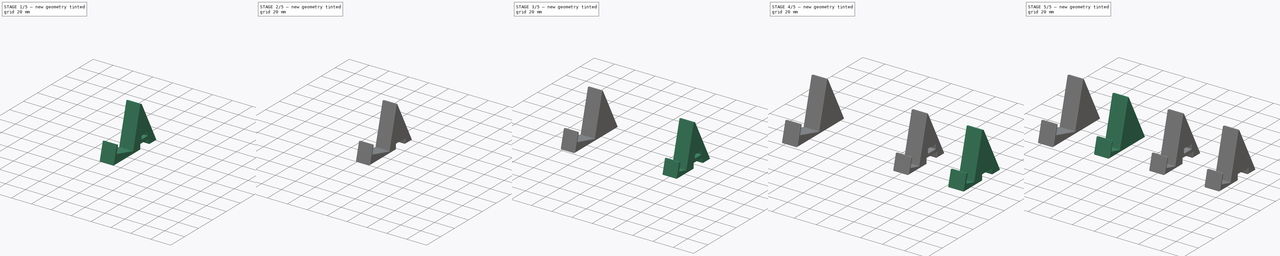
[diagram: build sequence overview — one tinted view per stage of 5, left to right]
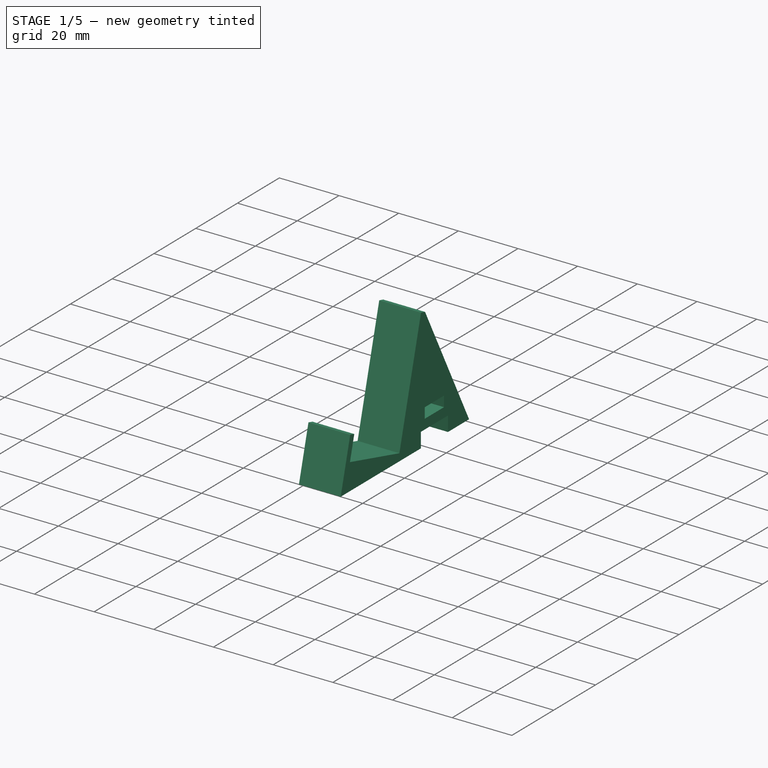
[diagram: stage 1 of 5 — iso view after this stage's code; geometry added in this stage tinted green]
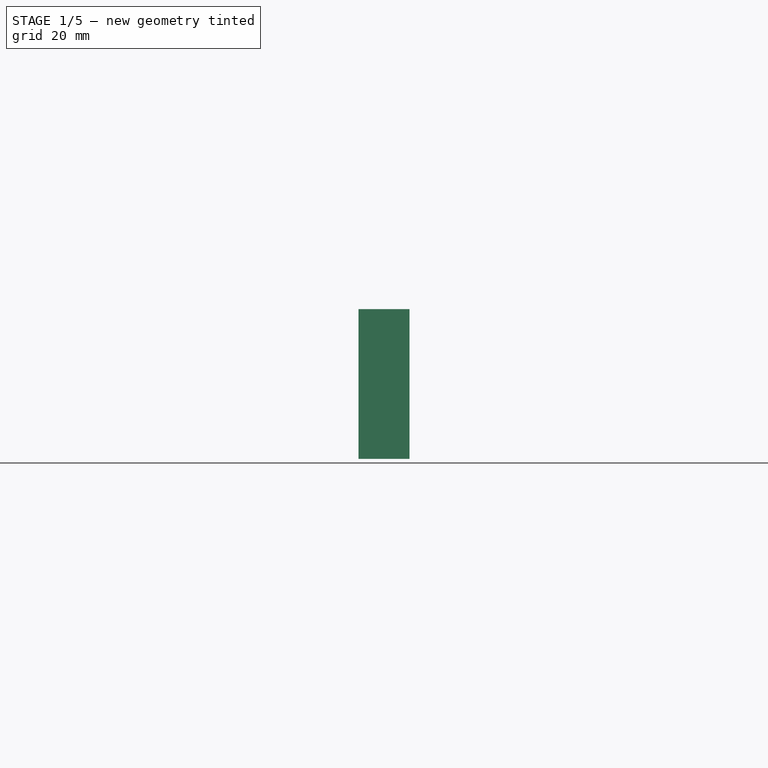
[diagram: stage 1 of 5 — front view after this stage's code; geometry added in this stage tinted green]
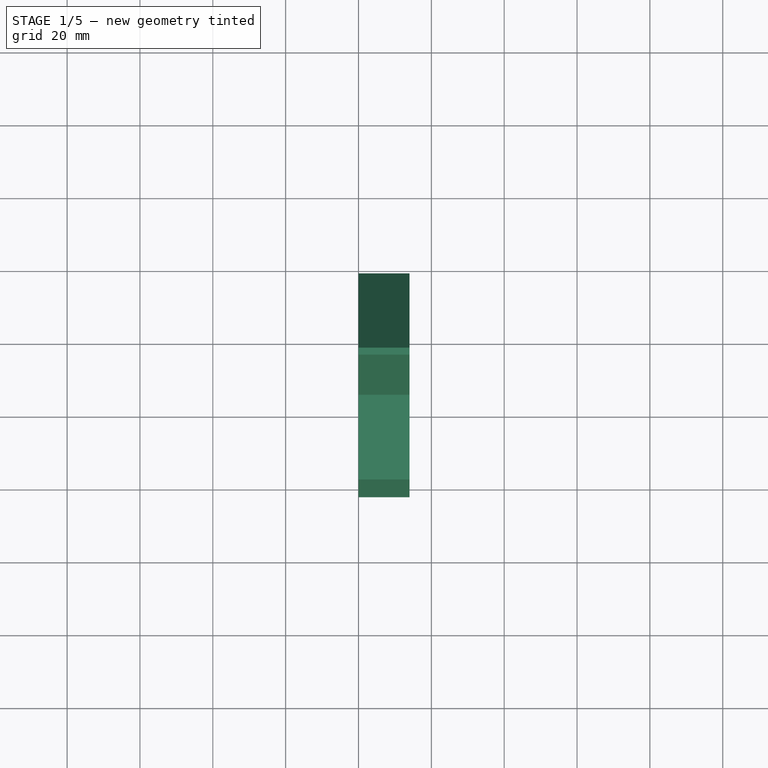
[diagram: stage 1 of 5 — top view after this stage's code; geometry added in this stage tinted green]
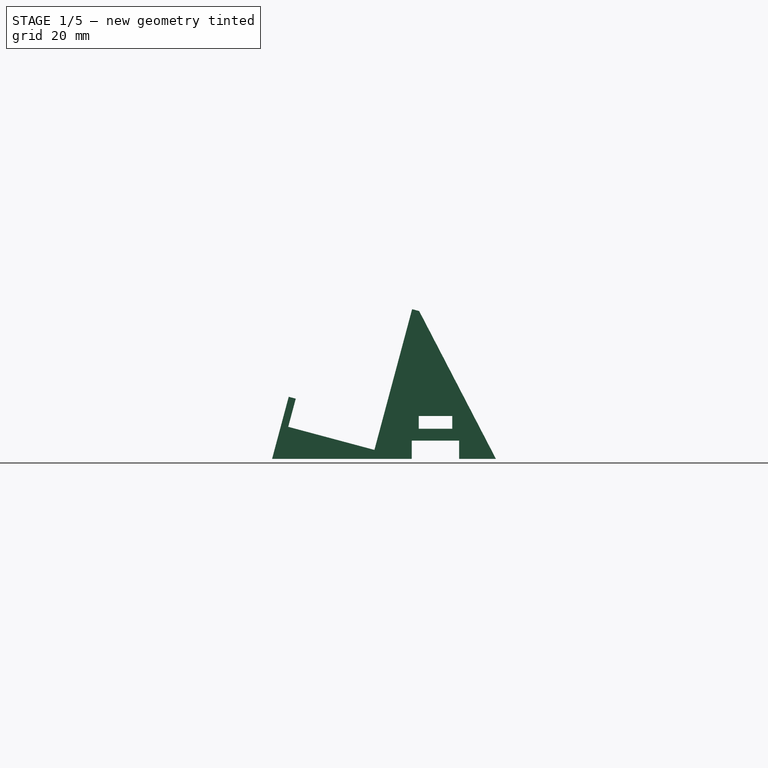
[diagram: stage 1 of 5 — right view after this stage's code; geometry added in this stage tinted green]
FCSTD DOCUMENT  (FreeCAD 0.20R29177 +426 (Git))
Label: CD Kit
License: All rights reserved
LicenseURL: http://en.wikipedia.org/wiki/All_rights_reserved
objects: Sketcher::SketchObject×18, PartDesign::Pocket×18, PartDesign::Pad×10, PartDesign::Body×8, Part::Part2DObjectPython×6, PartDesign::FeatureBase×6, PartDesign::Chamfer×6, App::Part×2, PartDesign::ShapeBinder×1
note: 107 computed .brp shape members not serialized (recipe doc carries the construction recipe); baked Part::Feature solids carry a one-line shape summary decoded from their .brp

FEATURE [PartDesign::Body] Body002  label="CD Kit Left"
  BaseFeature = -> Pad001
  Group = -> [Clone001,Sketch003,Sketch004,Pocket001,Sketch005,Pocket002,Pad003,Chamfer001,Sketch008,Pocket005,Pocket006,ShapeString001,Pocket010]
  Origin = -> Origin003
  Tip = -> Pocket010
FEATURE [App::Part] Part  label="CD Jewel Case"
  Group = -> [Body,Body001,Body002,Body003]
  Origin = -> Origin
FEATURE [Sketcher::SketchObject] Sketch010
  FullyConstrained = true
  MapMode = 5
  Placement = pos=(0,0,0) rot=(0.57735,0.57735,0.57735;2.0944rad)
  Support = -> [YZ_Plane006]
  sketch-geometry (9):
    g0: LineSegment StartX=0 StartY=0 StartZ=0 EndX=0 EndY=10 EndZ=0
    g1: LineSegment StartX=0 StartY=10 StartZ=0 EndX=2 EndY=10 EndZ=0
    g2: LineSegment StartX=2 StartY=10 StartZ=0 EndX=2 EndY=2 EndZ=0
    g3: LineSegment StartX=2 StartY=2 StartZ=0 EndX=26.5 EndY=2 EndZ=0
    g4: LineSegment StartX=26.5 StartY=2 StartZ=0 EndX=26.5 EndY=42 EndZ=0
    g5: LineSegment StartX=26.5 StartY=42 StartZ=0 EndX=28.5 EndY=42 EndZ=0
    g6: LineSegment StartX=28.5 StartY=42 StartZ=0 EndX=28.5 EndY=0 EndZ=0
    g7: LineSegment StartX=28.5 StartY=0 StartZ=0 EndX=0 EndY=0 EndZ=0
    g8: LineSegment StartX=26.5 StartY=2 StartZ=0 EndX=26.5 EndY=0 EndZ=0
  constraints (26):
    c: Coincident(g0,g-1)
    c: PointOnObject(g0,g-2)
    c: Coincident(g1,g0)
    c: Coincident(g2,g1)
    c: Vertical(g2)
    c: Coincident(g3,g2)
    c: Horizontal(g3)
    c: Coincident(g4,g3)
    c: Vertical(g4)
    c: Coincident(g5,g4)
    c: Horizontal(g5)
    c: Coincident(g6,g5)
    c: PointOnObject(g6,g-1)
    c: Vertical(g6)
    c: Coincident(g7,g6)
    c: Coincident(g7,g0)
    c: Horizontal(g1)
    c: Coincident(g8,g3)
    c: PointOnObject(g8,g7)
    c: Vertical(g8)
    c: Distance(g1) = 2
    c: Distance(g2) = 8
    c: Distance(g4) = 40
    c: Equal(g8,g1)
    c: Equal(g8,g5)
    c: Distance(g3) = 24.5
FEATURE [PartDesign::Pad] Pad005
  Direction = (1,-2e-16,3e-16)
  Length = 14
  Length2 = 10
  Placement = pos=(0,0,0) rot=(0.57735,0.57735,0.57735;2.0944rad)
  Profile = -> Sketch010
  ReferenceAxis = -> Sketch010 [N_Axis]
  Type = 0
FEATURE [Part::Part2DObjectPython] ShapeString003  # Draft 2D object (typed FeaturePython)
  FontFile = F:/16 Bit Git Repro/16 Bit Store/Font/OpenSans-Regular.ttf
  MakeFace = true
  Placement = pos=(12.5,4,4.44) rot=(0,0.707107,0.707107;3.14159rad)
  Size = 4
  String = CDXL
  Tracking = 0
FEATURE [PartDesign::Pocket] Pocket011
  BaseFeature = -> Pad005
  Direction = (0,-1,2e-16)
  Length = 0
  Length2 = 5
  Offset = 0.2
  Placement = pos=(0,0,0) rot=(0.57735,0.57735,0.57735;2.0944rad)
  Profile = -> ShapeString003
  ReferenceAxis = -> ShapeString003 [N_Axis]
  Type = 3
  UpToFace = -> Pad005 [Face3]
FEATURE [PartDesign::Body] Body004  label="XL Profile"
  Group = -> [Sketch010,Pad005,ShapeString003,Pocket011]
  Origin = -> Origin006
  Tip = -> Pocket011
FEATURE [PartDesign::FeatureBase] Clone003
  BaseFeature = -> Body004
  Placement = pos=(0,0,0) rot=(-1,0,0;0.261799rad)
FEATURE [Sketcher::SketchObject] Sketch011
  ExternalGeometry = -> [Clone003]
  FullyConstrained = true
  MapMode = 5
  Placement = pos=(14,-1.5e-14,4e-15) rot=(0.519988,0.677661,0.519988;1.95044rad)
  Support = -> [Clone003]
  sketch-geometry (20):
    g0: LineSegment StartX=28.5 StartY=-2.13e-14 StartZ=0 EndX=28.5 EndY=42 EndZ=0
    g1: LineSegment StartX=28.5 StartY=-2.13e-14 StartZ=0 EndX=7.1e-15 EndY=-1.35e-14 EndZ=0
    g2: LineSegment StartX=6.3e-15 StartY=-1.35e-14 StartZ=0 EndX=0 EndY=-7.63655 EndZ=0
    g3: LineSegment StartX=0 StartY=-7.63655 StartZ=0 EndX=28.5 EndY=-2.13e-14 EndZ=0
    g4: LineSegment StartX=28.5 StartY=-2.13e-14 StartZ=0 EndX=37.0385 EndY=2.28789 EndZ=0
    g5: LineSegment StartX=37.0385 StartY=2.28789 StartZ=0 EndX=35.7444 EndY=7.11752 EndZ=0
    g6: LineSegment StartX=35.7444 StartY=7.11752 StartZ=0 EndX=48.3015 EndY=10.4822 EndZ=0
    g7: LineSegment StartX=48.3015 StartY=10.4822 StartZ=0 EndX=49.5956 EndY=5.65254 EndZ=0
    g8: LineSegment StartX=49.5956 StartY=5.65254 StartZ=0 EndX=59.3478 EndY=8.26565 EndZ=0
    g9: LineSegment StartX=59.3478 StartY=8.26565 StartZ=0 EndX=28.5 EndY=42 EndZ=0
    g10: LineSegment StartX=36.7385 StartY=10.7485 StartZ=0 EndX=45.6251 EndY=13.1297 EndZ=0
    g11: LineSegment StartX=45.6251 StartY=13.1297 StartZ=0 EndX=44.7192 EndY=16.5104 EndZ=0
    g12: LineSegment StartX=44.7192 StartY=16.5104 StartZ=0 EndX=35.8327 EndY=14.1293 EndZ=0
    g13: LineSegment StartX=35.8327 StartY=14.1293 StartZ=0 EndX=36.7385 EndY=10.7485 EndZ=0
    g14: LineSegment StartX=41.1818 StartY=11.9391 StartZ=0 EndX=42.023 EndY=8.79985 EndZ=0
    g15: LineSegment StartX=37.0385 StartY=2.28789 StartZ=0 EndX=49.5956 EndY=5.65254 EndZ=0
    g16: LineSegment StartX=35.7444 StartY=7.11752 StartZ=0 EndX=28.5 EndY=5.17638 EndZ=0
    g17: LineSegment StartX=48.3015 StartY=10.4822 StartZ=0 EndX=55.5459 EndY=12.4233 EndZ=0
    g18: LineSegment StartX=44.7192 StartY=16.5104 StartZ=0 EndX=50.4133 EndY=18.0362 EndZ=0
    g19: LineSegment StartX=35.8327 StartY=14.1293 StartZ=0 EndX=28.5 EndY=12.1645 EndZ=0
  constraints (54):
    c: Coincident(g0,g-4)
    c: Coincident(g0,g-4)
    c: Coincident(g1,g0)
    c: Coincident(g1,g-3)
    c: Coincident(g2,g1)
    c: PointOnObject(g2,g-2)
    c: Coincident(g3,g2)
    c: Coincident(g3,g0)
    c: Coincident(g4,g0)
    c: Coincident(g5,g4)
    c: Coincident(g6,g5)
    c: Coincident(g7,g6)
    c: Coincident(g8,g7)
    c: Coincident(g9,g8)
    c: Coincident(g9,g0)
    c: Coincident(g11,g10)
    c: Coincident(g12,g11)
    c: Coincident(g13,g12)
    c: Coincident(g13,g10)
    c: Coincident(g15,g4)
    c: Coincident(g15,g7)
    c: Parallel(g3,g4)
    c: Parallel(g4,g15)
    c: Parallel(g15,g8)
    c: Parallel(g15,g6)
    c: Parallel(g6,g10)
    c: Parallel(g10,g12)
    c: Symmetric(g10,g10,g14)
    c: Symmetric(g5,g6,g14)
    c: Angle(g3,g2) = 1.309
    c: Perpendicular(g5,g4)
    c: Perpendicular(g8,g7)
    c: Perpendicular(g14,g6)
    c: Perpendicular(g13,g10)
    c: Perpendicular(g11,g10)
    c: Distance(g7) = 5
    c: Distance(g6) = 13
    c: Distance(g14) = 3.25
    c: Distance(g11) = 3.5
    c: Distance(g12) = 9.2
    c: Coincident(g16,g5)
    c: PointOnObject(g16,g0)
    c: Coincident(g17,g6)
    c: PointOnObject(g17,g9)
    c: Coincident(g18,g11)
    c: PointOnObject(g18,g9)
    c: Coincident(g19,g12)
    c: PointOnObject(g19,g0)
    c: Parallel(g19,g12)
    c: Parallel(g12,g18)
    c: Parallel(g17,g6)
    c: Parallel(g6,g16)
    c: Equal(g16,g17)
    c: Distance(g17) = 7.5
FEATURE [PartDesign::Pad] Pad006
  BaseFeature = -> Clone003
  Direction = (1,-1.1e-15,2e-16)
  Length = 14
  Length2 = 10
  Placement = pos=(0,0,0) rot=(-1,0,0;0.261799rad)
  Profile = -> Sketch011
  ReferenceAxis = -> Sketch011 [N_Axis]
  Refine = true
  Reversed = true
  Type = 0
FEATURE [Sketcher::SketchObject] Sketch012
  ExternalGeometry = -> [Pad006]
  FullyConstrained = true
  MapMode = 5
  Placement = pos=(1.2e-15,4.93681e-11,-7.37634) rot=(1,0,0;3.14159rad)
  Support = -> [Pad006]
  sketch-geometry (6):
    g0: LineSegment StartX=7 StartY=-59.4649 StartZ=0 EndX=7 EndY=-57.5528 EndZ=0
    g1: LineSegment StartX=7 StartY=-57.5528 StartZ=0 EndX=7 EndY=-54.4168 EndZ=0
    g2: LineSegment StartX=7 StartY=-54.4168 StartZ=0 EndX=7 EndY=-51.2808 EndZ=0
    g3: LineSegment StartX=7 StartY=-51.2808 StartZ=0 EndX=7 EndY=-49.3686 EndZ=0
    g4: Circle CenterX=7 CenterY=-54.4168 CenterZ=0 NormalX=0 NormalY=0 NormalZ=1 AngleXU=0 Radius=3.136
    g5: Circle CenterX=7 CenterY=-54.4168 CenterZ=0 NormalX=0 NormalY=0 NormalZ=1 AngleXU=0 Radius=0.893
  constraints (15):
    c: Vertical(g0)
    c: Coincident(g1,g0)
    c: Vertical(g1)
    c: Coincident(g2,g1)
    c: Vertical(g2)
    c: Coincident(g3,g2)
    c: Symmetric(g-3,g-3,g3)
    c: Symmetric(g-4,g-4,g0)
    c: Equal(g0,g3)
    c: Coincident(g4,g1)
    c: PointOnObject(g2,g4)
    c: Coincident(g5,g4)
    c: PointOnObject(g0,g4)
    c: Diameter(g4) = 6.272
    c: Diameter(g5) = 1.786
FEATURE [PartDesign::Pocket] Pocket012
  BaseFeature = -> Pad006
  Direction = (-2e-16,-6.6928e-12,1)
  Length = 0.5
  Length2 = 5
  Placement = pos=(0,0,0) rot=(-1,0,0;0.261799rad)
  Profile = -> Sketch012
  ReferenceAxis = -> Sketch012 [N_Axis]
  Type = 0
FEATURE [PartDesign::Pocket] Pocket013
  BaseFeature = -> Pocket012
  Direction = (-2e-16,-6.6929e-12,1)
  Length = 1
  Length2 = 5
  Placement = pos=(0,0,0) rot=(-1,0,0;0.261799rad)
  Profile = -> Pocket012 [Face86]
  Type = 0
FEATURE [PartDesign::FeatureBase] Clone004
  BaseFeature = -> Pocket013
  Placement = pos=(0,0,0) rot=(-1,0,0;0.261799rad)
FEATURE [Sketcher::SketchObject] Sketch013
  ExternalGeometry = -> [Clone004]
  FullyConstrained = true
  MapMode = 5
  Placement = pos=(4e-16,7.0098e-12,-2.37634) rot=(1,0,0;3.14159rad)
  Support = -> [Clone004]
  sketch-geometry (1):
    g0: Circle CenterX=7 CenterY=-42.8686 CenterZ=0 NormalX=0 NormalY=0 NormalZ=1 AngleXU=0 Radius=2.4
  constraints (2):
    c: Diameter(g0) = 4.8
    c: Symmetric(g-3,g-4,g0)
FEATURE [PartDesign::Pocket] Pocket014
  BaseFeature = -> Clone004
  Direction = (-2e-16,-2.9498e-12,1)
  Length = 11
  Length2 = 5
  Placement = pos=(0,0,0) rot=(-1,0,0;0.261799rad)
  Profile = -> Sketch013
  ReferenceAxis = -> Sketch013 [N_Axis]
  Type = 0
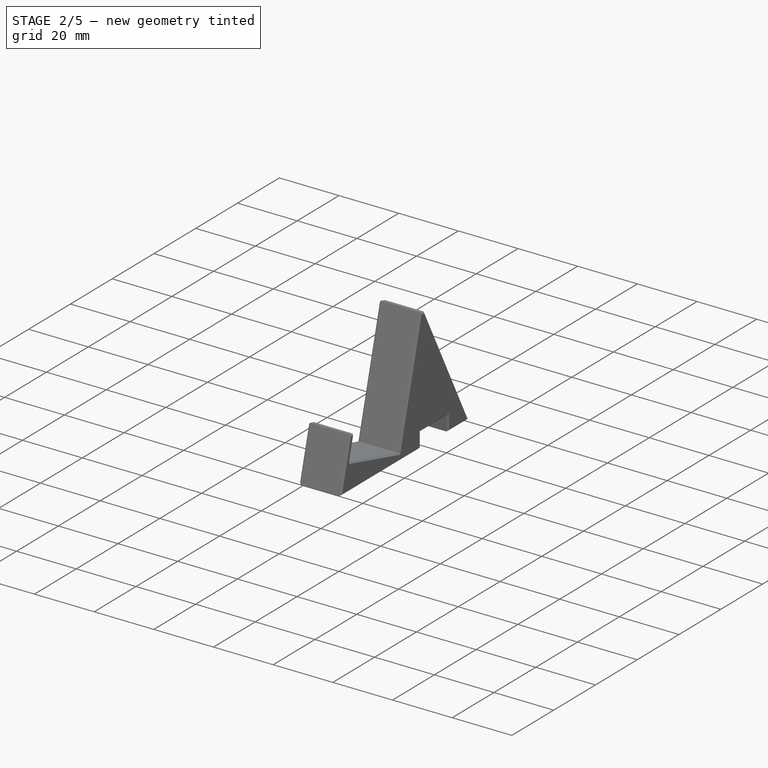
[diagram: stage 2 of 5 — iso view after this stage's code; geometry added in this stage tinted green]
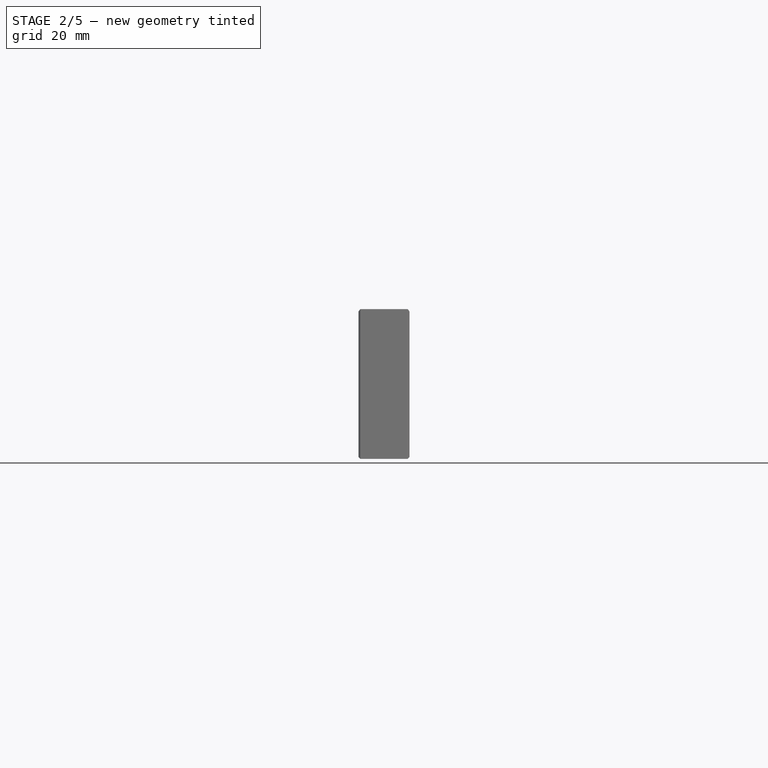
[diagram: stage 2 of 5 — front view after this stage's code; geometry added in this stage tinted green]
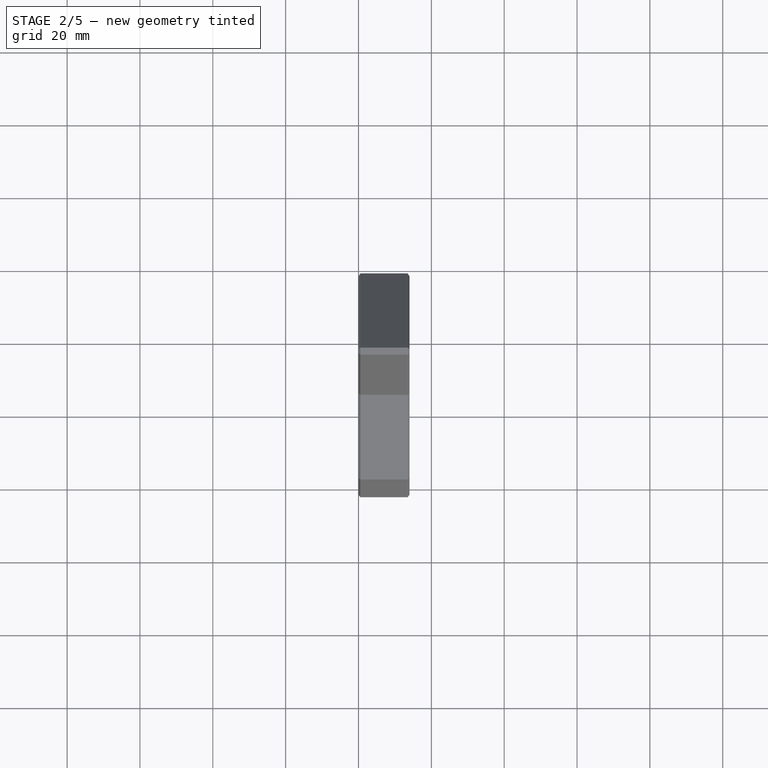
[diagram: stage 2 of 5 — top view after this stage's code; geometry added in this stage tinted green]
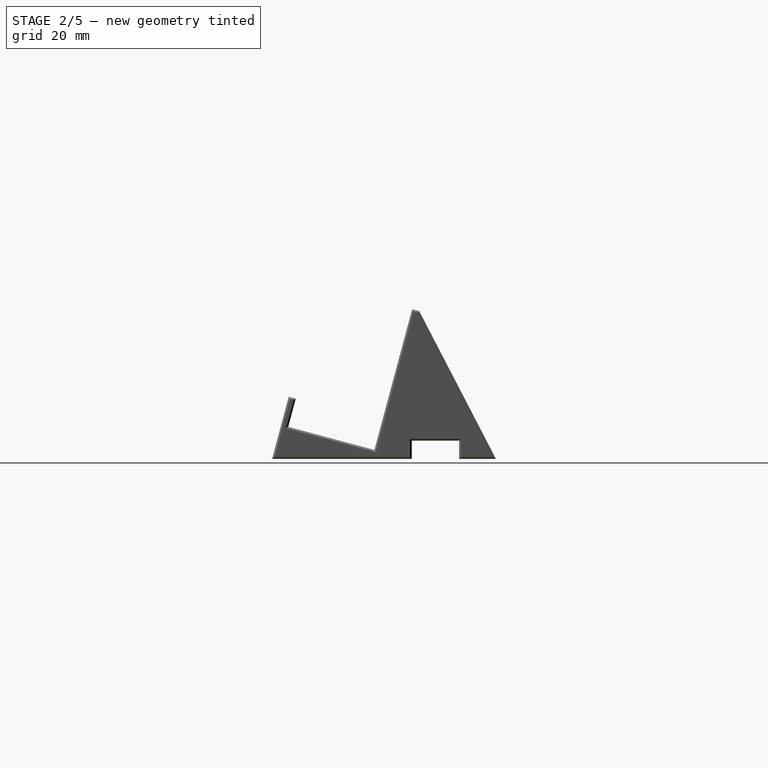
[diagram: stage 2 of 5 — right view after this stage's code; geometry added in this stage tinted green]
FEATURE [Sketcher::SketchObject] Sketch014
  ExternalGeometry = -> [Pocket014]
  FullyConstrained = true
  MapMode = 5
  Placement = pos=(4e-16,7.0102e-12,-2.37634) rot=(1,0,0;3.14159rad)
  Support = -> [Pocket014]
  sketch-geometry (1):
    g0: Circle CenterX=7 CenterY=-42.8686 CenterZ=0 NormalX=0 NormalY=0 NormalZ=1 AngleXU=0 Radius=2.6
  constraints (2):
    c: Coincident(g0,g-3)
    c: Diameter(g0) = 5.2
FEATURE [PartDesign::Pocket] Pocket015
  BaseFeature = -> Pocket014
  Direction = (-2e-16,-2.95e-12,1)
  Length = 5
  Length2 = 5
  Placement = pos=(0,0,0) rot=(-1,0,0;0.261799rad)
  Profile = -> Sketch014
  ReferenceAxis = -> Sketch014 [N_Axis]
  Type = 0
FEATURE [PartDesign::FeatureBase] Clone005
  BaseFeature = -> Pocket015
  Placement = pos=(0,0,0) rot=(-1,0,0;0.261799rad)
FEATURE [Sketcher::SketchObject] Sketch016
  ExternalGeometry = -> [Pocket015]
  FullyConstrained = true
  MapMode = 5
  Placement = pos=(-1.8e-14,0,0) rot=(0.519988,-0.677661,-0.519988;1.95044rad)
  Support = -> [Pocket015]
  sketch-geometry (4):
    g0: LineSegment StartX=-44.7192 StartY=16.5104 StartZ=0 EndX=-35.8327 EndY=14.1293 EndZ=0
    g1: LineSegment StartX=-35.8327 StartY=14.1293 StartZ=0 EndX=-36.7385 EndY=10.7485 EndZ=0
    g2: LineSegment StartX=-36.7385 StartY=10.7485 StartZ=0 EndX=-45.6251 EndY=13.1297 EndZ=0
    g3: LineSegment StartX=-45.6251 StartY=13.1297 StartZ=0 EndX=-44.7192 EndY=16.5104 EndZ=0
  constraints (8):
    c: Coincident(g0,g-3)
    c: Coincident(g0,g-4)
    c: Coincident(g1,g0)
    c: Coincident(g1,g-4)
    c: Coincident(g2,g1)
    c: Coincident(g2,g-3)
    c: Coincident(g3,g2)
    c: Coincident(g3,g0)
FEATURE [PartDesign::Pad] Pad008
  BaseFeature = -> Pocket015
  Direction = (-1,6e-16,-9e-16)
  Length = 2
  Length2 = 10
  Placement = pos=(0,0,0) rot=(-1,0,0;0.261799rad)
  Profile = -> Sketch016
  ReferenceAxis = -> Sketch016 [N_Axis]
  Refine = true
  Reversed = true
  Type = 0
FEATURE [Sketcher::SketchObject] Sketch017
  ExternalGeometry = -> [Clone005]
  FullyConstrained = true
  MapMode = 5
  Placement = pos=(14,-5.9e-15,1.06e-14) rot=(0.519988,0.677661,0.519988;1.95044rad)
  Support = -> [Clone005]
  sketch-geometry (4):
    g0: LineSegment StartX=35.8327 StartY=14.1293 StartZ=0 EndX=44.7192 EndY=16.5104 EndZ=0
    g1: LineSegment StartX=44.7192 StartY=16.5104 StartZ=0 EndX=45.6251 EndY=13.1297 EndZ=0
    g2: LineSegment StartX=45.6251 StartY=13.1297 StartZ=0 EndX=36.7385 EndY=10.7485 EndZ=0
    g3: LineSegment StartX=36.7385 StartY=10.7485 StartZ=0 EndX=35.8327 EndY=14.1293 EndZ=0
  constraints (8):
    c: Coincident(g0,g-3)
    c: Coincident(g0,g-4)
    c: Coincident(g1,g0)
    c: Coincident(g1,g-4)
    c: Coincident(g2,g1)
    c: Coincident(g2,g-3)
    c: Coincident(g3,g2)
    c: Coincident(g3,g0)
FEATURE [PartDesign::Pad] Pad009
  BaseFeature = -> Clone005
  Direction = (1,-3e-16,7e-16)
  Length = 2
  Length2 = 10
  Placement = pos=(0,0,0) rot=(-1,0,0;0.261799rad)
  Profile = -> Sketch017
  ReferenceAxis = -> Sketch017 [N_Axis]
  Refine = true
  Reversed = true
  Type = 0
FEATURE [PartDesign::Body] Body005  label="XL Stand"
  BaseFeature = -> Body004
  Group = -> [Clone003,Sketch011,Pad006,Sketch012,Pocket012,Pocket013,Sketch015,Pad007,Chamfer003]
  Origin = -> Origin007
  Placement = pos=(50,0,0) rot=(0,0,1;0rad)
  Tip = -> Chamfer003
FEATURE [Part::Part2DObjectPython] ShapeString004  # Draft 2D object (typed FeaturePython)
  FontFile = F:/16 Bit Git Repro/16 Bit Store/Font/OpenSans-Regular.ttf
  MakeFace = true
  Placement = pos=(3.72,7.84,-9.31) rot=(1,0,0;3.14159rad)
  Size = 10
  String = L
  Tracking = 0
FEATURE [Part::Part2DObjectPython] ShapeString005  # Draft 2D object (typed FeaturePython)
  FontFile = F:/16 Bit Git Repro/16 Bit Store/Font/OpenSans-Regular.ttf
  MakeFace = true
  Placement = pos=(3.43,7.84,-9.31) rot=(1,0,0;3.14159rad)
  Size = 10
  String = R
  Tracking = 0
FEATURE [PartDesign::Pocket] Pocket016
  BaseFeature = -> Pad008
  Direction = (0,0,1)
  Length = 0
  Length2 = 5
  Offset = 0.5
  Placement = pos=(0,0,0) rot=(-1,0,0;0.261799rad)
  Profile = -> ShapeString004
  ReferenceAxis = -> ShapeString004 [N_Axis]
  Type = 3
  UpToFace = -> Pad008 [Face5]
FEATURE [PartDesign::Pocket] Pocket017
  BaseFeature = -> Pad009
  Direction = (0,0,1)
  Length = 0
  Length2 = 5
  Offset = 0.5
  Placement = pos=(0,0,0) rot=(-1,0,0;0.261799rad)
  Profile = -> ShapeString005
  ReferenceAxis = -> ShapeString005 [N_Axis]
  Type = 3
  UpToFace = -> Pad009 [Face5]
FEATURE [PartDesign::Chamfer] Chamfer004
  Angle = 45
  Base = -> Pocket017 [Face5,Face4]
  BaseFeature = -> Pocket017
  ChamferType = 0
  FlipDirection = false
  Placement = pos=(0,0,0) rot=(-1,0,0;0.261799rad)
  Size = 0.5
  Size2 = 1
  SupportTransform = false
  UseAllEdges = false
FEATURE [PartDesign::Body] Body007  label="XL Kit Right"
  BaseFeature = -> Pocket015
  Group = -> [Clone005,Sketch017,Pad009,ShapeString005,Pocket017,Chamfer004]
  Origin = -> Origin009
  Placement = pos=(150,0,0) rot=(0,0,1;0rad)
  Tip = -> Chamfer004
FEATURE [PartDesign::Chamfer] Chamfer005
  Angle = 45
  Base = -> Pocket016 [Face4,Face5]
  BaseFeature = -> Pocket016
  ChamferType = 0
  FlipDirection = false
  Placement = pos=(0,0,0) rot=(-1,0,0;0.261799rad)
  Size = 0.5
  Size2 = 1
  SupportTransform = false
  UseAllEdges = false
FEATURE [PartDesign::Body] Body006  label="XL Kit Left"
  BaseFeature = -> Pocket013
  Group = -> [Clone004,Sketch013,Pocket014,Sketch014,Pocket015,Sketch016,Pad008,ShapeString004,Pocket016,Chamfer005]
  Origin = -> Origin008
  Placement = pos=(100,0,0) rot=(0,0,1;0rad)
  Tip = -> Chamfer005
FEATURE [App::Part] Part001  label="CD XL Jewel Case"
  Group = -> [Body004,Body005,Body006,Body007]
  Origin = -> Origin005
  Placement = pos=(0,100,0) rot=(0,0,1;0rad)
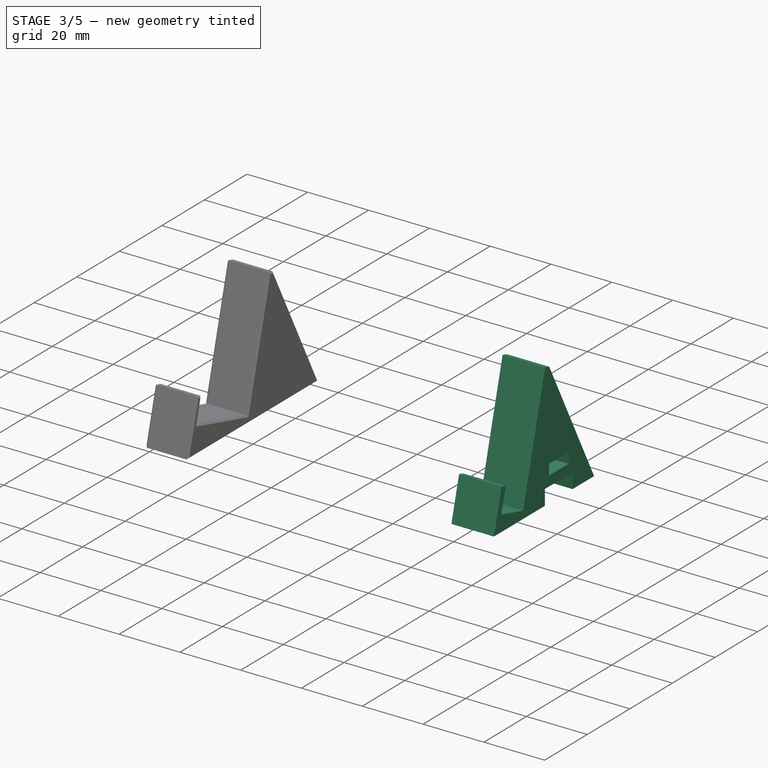
[diagram: stage 3 of 5 — iso view after this stage's code; geometry added in this stage tinted green]
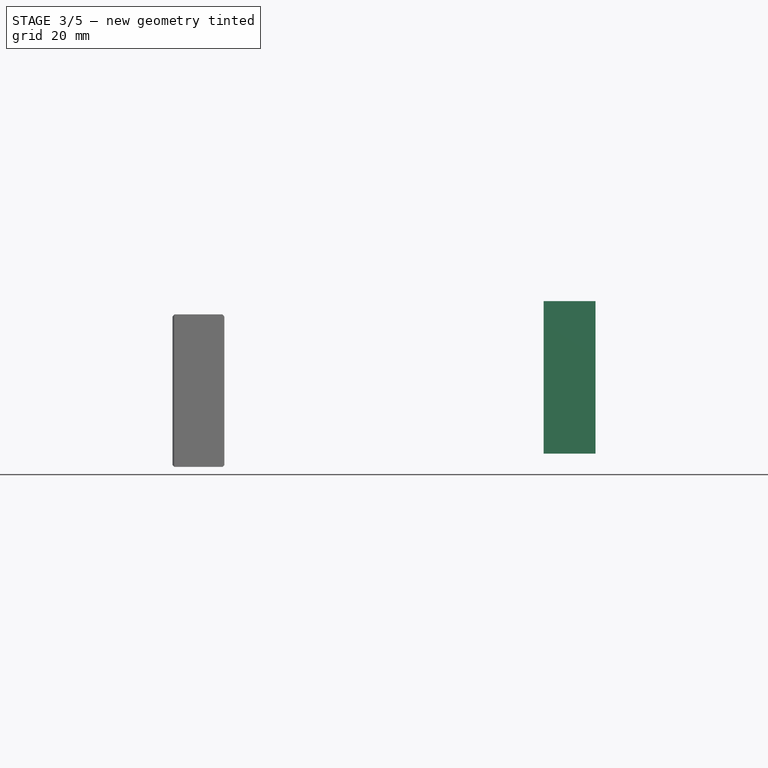
[diagram: stage 3 of 5 — front view after this stage's code; geometry added in this stage tinted green]
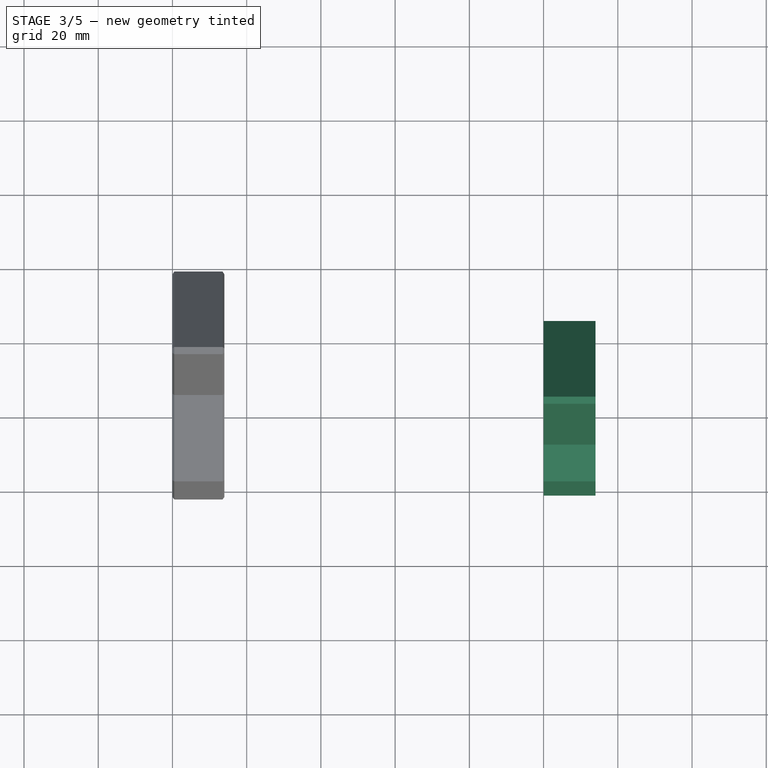
[diagram: stage 3 of 5 — top view after this stage's code; geometry added in this stage tinted green]
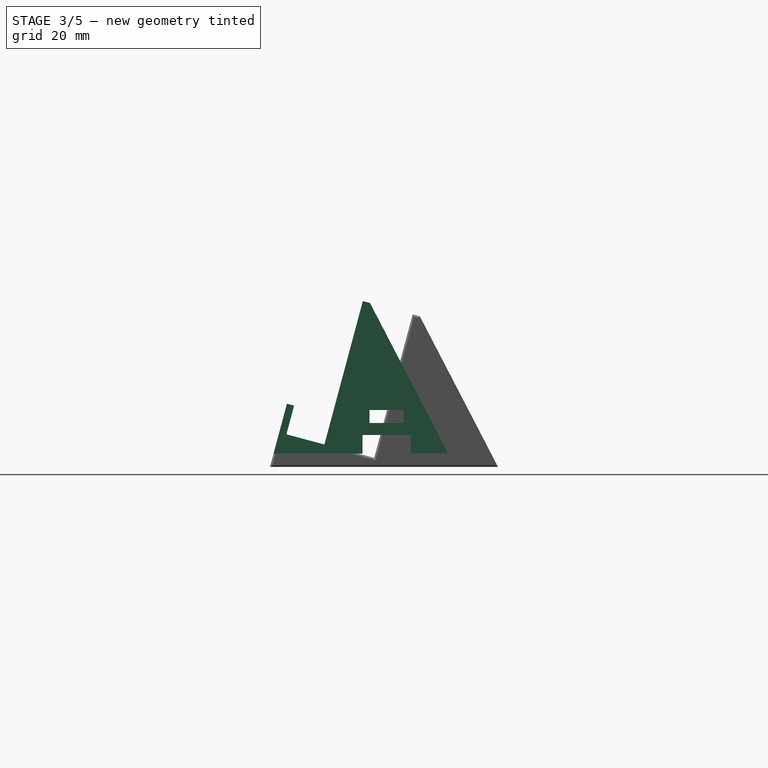
[diagram: stage 3 of 5 — right view after this stage's code; geometry added in this stage tinted green]
FEATURE [Sketcher::SketchObject] Sketch
  FullyConstrained = true
  MapMode = 5
  Placement = pos=(0,0,0) rot=(0.57735,0.57735,0.57735;2.0944rad)
  Support = -> [YZ_Plane001]
  sketch-geometry (9):
    g0: LineSegment StartX=0 StartY=0 StartZ=0 EndX=0 EndY=10 EndZ=0
    g1: LineSegment StartX=0 StartY=10 StartZ=0 EndX=2 EndY=10 EndZ=0
    g2: LineSegment StartX=2 StartY=10 StartZ=0 EndX=2 EndY=2 EndZ=0
    g3: LineSegment StartX=2 StartY=2 StartZ=0 EndX=12.6 EndY=2 EndZ=0
    g4: LineSegment StartX=12.6 StartY=2 StartZ=0 EndX=12.6 EndY=42 EndZ=0
    g5: LineSegment StartX=12.6 StartY=42 StartZ=0 EndX=14.6 EndY=42 EndZ=0
    g6: LineSegment StartX=14.6 StartY=42 StartZ=0 EndX=14.6 EndY=0 EndZ=0
    g7: LineSegment StartX=14.6 StartY=0 StartZ=0 EndX=0 EndY=0 EndZ=0
    g8: LineSegment StartX=12.6 StartY=2 StartZ=0 EndX=12.6 EndY=0 EndZ=0
  constraints (26):
    c: Coincident(g0,g-1)
    c: PointOnObject(g0,g-2)
    c: Coincident(g1,g0)
    c: Horizontal(g1)
    c: Coincident(g2,g1)
    c: Vertical(g2)
    c: Coincident(g3,g2)
    c: Horizontal(g3)
    c: Coincident(g4,g3)
    c: Vertical(g4)
    c: Coincident(g5,g4)
    c: Horizontal(g5)
    c: Coincident(g6,g5)
    c: PointOnObject(g6,g-1)
    c: Vertical(g6)
    c: Coincident(g7,g6)
    c: Coincident(g7,g0)
    c: Coincident(g8,g3)
    c: PointOnObject(g8,g7)
    c: Vertical(g8)
    c: Equal(g1,g8)
    c: Equal(g5,g8)
    c: DistanceX(g1,g1) = 2
    c: DistanceX(g3,g3) = 10.6
    c: DistanceY(g2,g2) = 8
    c: DistanceY(g4,g4) = 40
FEATURE [PartDesign::Pad] Pad
  Direction = (1,-2e-16,3e-16)
  Length = 14
  Length2 = 10
  Placement = pos=(0,0,0) rot=(0.57735,0.57735,0.57735;2.0944rad)
  Profile = -> Sketch
  ReferenceAxis = -> Sketch [N_Axis]
  Type = 0
FEATURE [Part::Part2DObjectPython] ShapeString  # Draft 2D object (typed FeaturePython)
  FontFile = F:/16 Bit Git Repro/16 Bit Store/Font/OpenSans-Regular.ttf
  MakeFace = true
  Placement = pos=(9.97,4,4.44) rot=(0,0.707107,0.707107;3.14159rad)
  Size = 4
  String = CD
  Tracking = 0
FEATURE [PartDesign::Pocket] Pocket
  BaseFeature = -> Pad
  Direction = (-1e-16,-1,0)
  Length = 0
  Length2 = 5
  Offset = 0.2
  Placement = pos=(0,0,0) rot=(0.57735,0.57735,0.57735;2.0944rad)
  Profile = -> ShapeString
  ReferenceAxis = -> ShapeString [N_Axis]
  Type = 3
  UpToFace = -> Pad [Face3]
FEATURE [PartDesign::ShapeBinder] CopyClone
  Placement = pos=(50,3.62347,13.523) rot=(0.621515,0.621515,0.476905;4.0316rad)
  TraceSupport = false
FEATURE [PartDesign::Body] Body  label="CD Profile"
  Group = -> [Sketch,Pad,ShapeString,Pocket,CopyClone]
  Origin = -> Origin001
  Tip = -> Pocket
FEATURE [PartDesign::FeatureBase] Clone
  BaseFeature = -> Body
  Placement = pos=(50,0,0) rot=(-1,0,0;0.261799rad)
FEATURE [Sketcher::SketchObject] Sketch001
  ExternalGeometry = -> [Clone]
  FullyConstrained = true
  MapMode = 5
  Placement = pos=(64,-7.6e-15,2e-15) rot=(0.519988,0.677661,0.519988;1.95044rad)
  Support = -> [Clone]
  sketch-geometry (20):
    g0: LineSegment StartX=6.3e-15 StartY=-1.35e-14 StartZ=0 EndX=0 EndY=-3.91206 EndZ=0
    g1: LineSegment StartX=0 StartY=-3.91206 StartZ=0 EndX=14.6 EndY=0 EndZ=0
    g2: LineSegment StartX=6.3e-15 StartY=-1.35e-14 StartZ=0 EndX=14.6 EndY=0 EndZ=0
    g3: LineSegment StartX=14.6 StartY=42 StartZ=0 EndX=14.6 EndY=0 EndZ=0
    g4: LineSegment StartX=14.6 StartY=42 StartZ=0 EndX=45.4478 EndY=8.26565 EndZ=0
    g5: LineSegment StartX=45.4478 StartY=8.26565 StartZ=0 EndX=35.6956 EndY=5.65254 EndZ=0
    g6: LineSegment StartX=35.6956 StartY=5.65254 StartZ=0 EndX=34.4015 EndY=10.4822 EndZ=0
    g7: LineSegment StartX=34.4015 StartY=10.4822 StartZ=0 EndX=21.8444 EndY=7.11752 EndZ=0
    g8: LineSegment StartX=21.8444 StartY=7.11752 StartZ=0 EndX=23.1385 EndY=2.28789 EndZ=0
    g9: LineSegment StartX=23.1385 StartY=2.28789 StartZ=0 EndX=14.6 EndY=0 EndZ=0
    g10: LineSegment StartX=22.8385 StartY=10.7485 StartZ=0 EndX=31.7251 EndY=13.1297 EndZ=0
    g11: LineSegment StartX=31.7251 StartY=13.1297 StartZ=0 EndX=30.8192 EndY=16.5104 EndZ=0
    g12: LineSegment StartX=30.8192 StartY=16.5104 StartZ=0 EndX=21.9327 EndY=14.1293 EndZ=0
    g13: LineSegment StartX=22.8385 StartY=10.7485 StartZ=0 EndX=21.9327 EndY=14.1293 EndZ=0
    g14: LineSegment StartX=23.1385 StartY=2.28789 StartZ=0 EndX=35.6956 EndY=5.65254 EndZ=0
    g15: LineSegment StartX=27.2818 StartY=11.9391 StartZ=0 EndX=28.123 EndY=8.79985 EndZ=0
    g16: LineSegment StartX=14.6 StartY=5.17638 StartZ=0 EndX=21.8444 EndY=7.11752 EndZ=0
    g17: LineSegment StartX=34.4015 StartY=10.4822 StartZ=0 EndX=41.6459 EndY=12.4233 EndZ=0
    g18: LineSegment StartX=30.8192 StartY=16.5104 StartZ=0 EndX=36.5133 EndY=18.0362 EndZ=0
    g19: LineSegment StartX=21.9327 StartY=14.1293 StartZ=0 EndX=14.6 EndY=12.1645 EndZ=0
  constraints (54):
    c: Coincident(g0,g-3)
    c: PointOnObject(g0,g-2)
    c: Coincident(g1,g0)
    c: Coincident(g1,g-4)
    c: Coincident(g2,g0)
    c: Coincident(g2,g1)
    c: Coincident(g3,g-4)
    c: Coincident(g3,g1)
    c: Coincident(g4,g3)
    c: Coincident(g5,g4)
    c: Coincident(g6,g5)
    c: Coincident(g7,g6)
    c: Coincident(g8,g7)
    c: Coincident(g9,g8)
    c: Coincident(g9,g1)
    c: Coincident(g11,g10)
    c: Coincident(g12,g11)
    c: Coincident(g13,g10)
    c: Coincident(g13,g12)
    c: Angle(g1,g0) = 1.309
    c: Parallel(g1,g9)
    c: Parallel(g9,g7)
    c: Parallel(g7,g5)
    c: Parallel(g7,g10)
    c: Parallel(g12,g10)
    c: Perpendicular(g10,g11)
    c: Perpendicular(g10,g13)
    c: Perpendicular(g8,g9)
    c: Perpendicular(g6,g5)
    c: Coincident(g14,g8)
    c: Coincident(g14,g5)
    c: Symmetric(g10,g10,g15)
    c: Symmetric(g7,g6,g15)
    c: Perpendicular(g15,g7)
    c: Distance(g15) = 3.25
    c: Distance(g11) = 3.5
    c: Distance(g12) = 9.2
    c: Distance(g6) = 5
    c: Distance(g7) = 13
    c: PointOnObject(g16,g3)
    c: Coincident(g16,g7)
    c: Coincident(g17,g6)
    c: PointOnObject(g17,g4)
    c: Coincident(g18,g11)
    c: PointOnObject(g18,g4)
    c: Coincident(g19,g12)
    c: PointOnObject(g19,g3)
    c: Parallel(g19,g12)
    c: Parallel(g12,g18)
    c: Parallel(g17,g7)
    c: Parallel(g16,g7)
    c: Equal(g16,g17)
    c: Distance(g17) = 7.5
    c: Parallel(g9,g14)
FEATURE [PartDesign::Pad] Pad001
  BaseFeature = -> Clone
  Direction = (1,-6e-16,1e-16)
  Length = 14
  Length2 = 10
  Placement = pos=(50,0,0) rot=(-1,0,0;0.261799rad)
  Profile = -> Sketch001
  ReferenceAxis = -> Sketch001 [N_Axis]
  Refine = true
  Reversed = true
  Type = 0
FEATURE [PartDesign::FeatureBase] Clone001
  BaseFeature = -> Pad001
  Placement = pos=(100,0,0) rot=(-1,0,0;0.261799rad)
FEATURE [Sketcher::SketchObject] Sketch003
  ExternalGeometry = -> [Clone001]
  FullyConstrained = true
  MapMode = 5
  Placement = pos=(100,0,0) rot=(0.519988,-0.677661,-0.519988;1.95044rad)
  Support = -> [Clone001]
  sketch-geometry (4):
    g0: LineSegment StartX=-30.8192 StartY=16.5104 StartZ=0 EndX=-21.9327 EndY=14.1293 EndZ=0
    g1: LineSegment StartX=-21.9327 StartY=14.1293 StartZ=0 EndX=-22.8385 EndY=10.7485 EndZ=0
    g2: LineSegment StartX=-22.8385 StartY=10.7485 StartZ=0 EndX=-31.7251 EndY=13.1297 EndZ=0
    g3: LineSegment StartX=-31.7251 StartY=13.1297 StartZ=0 EndX=-30.8192 EndY=16.5104 EndZ=0
  constraints (8):
    c: Coincident(g0,g-4)
    c: Coincident(g0,g-3)
    c: Coincident(g1,g0)
    c: Coincident(g1,g-3)
    c: Coincident(g2,g1)
    c: Coincident(g2,g-4)
    c: Coincident(g3,g2)
    c: Coincident(g3,g0)
FEATURE [Sketcher::SketchObject] Sketch004
  ExternalGeometry = -> [Clone001]
  FullyConstrained = true
  MapMode = 5
  Placement = pos=(100,2.5e-15,1.22124) rot=(1,0,0;3.14159rad)
  Support = -> [Clone001]
  sketch-geometry (1):
    g0: Circle CenterX=7 CenterY=-29.4423 CenterZ=0 NormalX=0 NormalY=0 NormalZ=1 AngleXU=0 Radius=2.4
  constraints (2):
    c: Symmetric(g-3,g-4,g0)
    c: Diameter(g0) = 4.8
FEATURE [PartDesign::Pocket] Pocket001
  BaseFeature = -> Clone001
  Direction = (-1e-16,2.1e-15,1)
  Length = 11
  Length2 = 5
  Placement = pos=(100,0,0) rot=(-1,0,0;0.261799rad)
  Profile = -> Sketch004
  ReferenceAxis = -> Sketch004 [N_Axis]
  Type = 0
FEATURE [Sketcher::SketchObject] Sketch015
  ExternalGeometry = -> [Pocket013]
  FullyConstrained = true
  MapMode = 5
  Placement = pos=(14,-5.9e-15,1.06e-14) rot=(0.519988,0.677661,0.519988;1.95044rad)
  Support = -> [Pocket013]
  sketch-geometry (8):
    g0: LineSegment StartX=35.8327 StartY=14.1293 StartZ=0 EndX=44.7192 EndY=16.5104 EndZ=0
    g1: LineSegment StartX=44.7192 StartY=16.5104 StartZ=0 EndX=45.6251 EndY=13.1297 EndZ=0
    g2: LineSegment StartX=45.6251 StartY=13.1297 StartZ=0 EndX=36.7385 EndY=10.7485 EndZ=0
    g3: LineSegment StartX=36.7385 StartY=10.7485 StartZ=0 EndX=35.8327 EndY=14.1293 EndZ=0
    g4: LineSegment StartX=35.7444 StartY=7.11752 StartZ=0 EndX=37.0385 EndY=2.28789 EndZ=0
    g5: LineSegment StartX=37.0385 StartY=2.28789 StartZ=0 EndX=49.5956 EndY=5.65254 EndZ=0
    g6: LineSegment StartX=49.5956 StartY=5.65254 StartZ=0 EndX=48.3015 EndY=10.4822 EndZ=0
    g7: LineSegment StartX=48.3015 StartY=10.4822 StartZ=0 EndX=35.7444 EndY=7.11752 EndZ=0
  constraints (16):
    c: Coincident(g0,g-3)
    c: Coincident(g0,g-4)
    c: Coincident(g1,g0)
    c: Coincident(g1,g-4)
    c: Coincident(g2,g1)
    c: Coincident(g2,g-3)
    c: Coincident(g3,g2)
    c: Coincident(g3,g0)
    c: Coincident(g4,g-6)
    c: Coincident(g4,g-6)
    c: Coincident(g5,g4)
    c: Coincident(g5,g-5)
    c: Coincident(g6,g5)
    c: Coincident(g6,g-5)
    c: Coincident(g7,g6)
    c: Coincident(g7,g4)
FEATURE [PartDesign::Pad] Pad007
  BaseFeature = -> Pocket013
  Direction = (1,-3e-16,7e-16)
  Length = 14
  Length2 = 10
  Placement = pos=(0,0,0) rot=(-1,0,0;0.261799rad)
  Profile = -> Sketch015
  ReferenceAxis = -> Sketch015 [N_Axis]
  Refine = true
  Reversed = true
  Type = 0
FEATURE [PartDesign::Chamfer] Chamfer003
  Angle = 45
  Base = -> Pad007 [Face73,Face72]
  BaseFeature = -> Pad007
  ChamferType = 0
  FlipDirection = false
  Placement = pos=(0,0,0) rot=(-1,0,0;0.261799rad)
  Size = 0.5
  Size2 = 1
  SupportTransform = false
  UseAllEdges = false
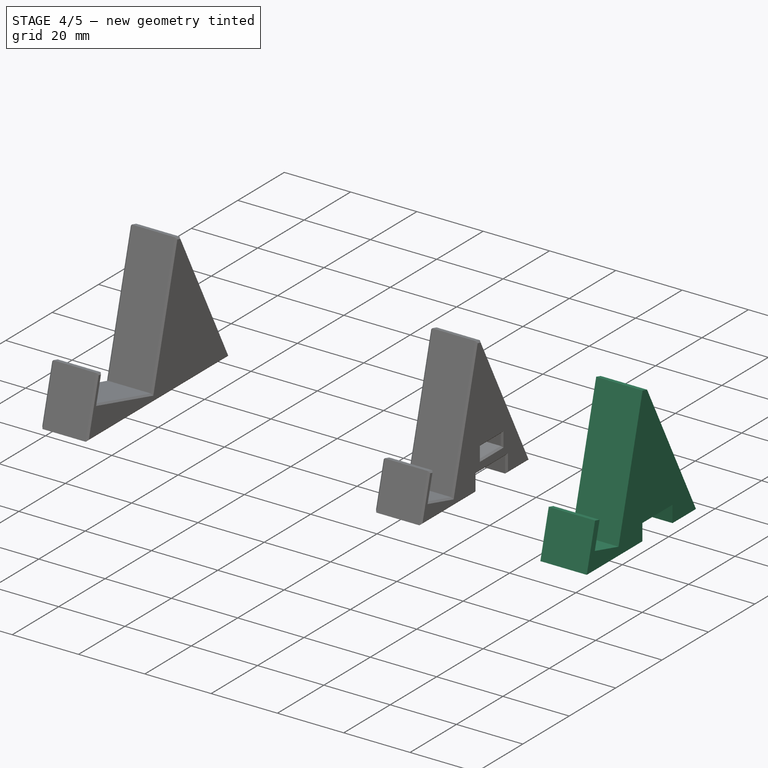
[diagram: stage 4 of 5 — iso view after this stage's code; geometry added in this stage tinted green]
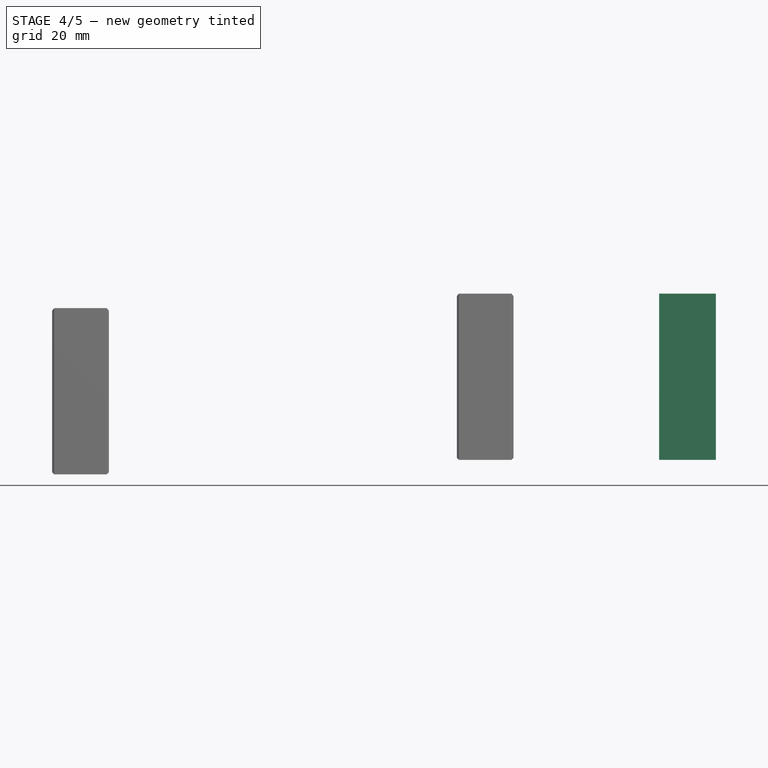
[diagram: stage 4 of 5 — front view after this stage's code; geometry added in this stage tinted green]
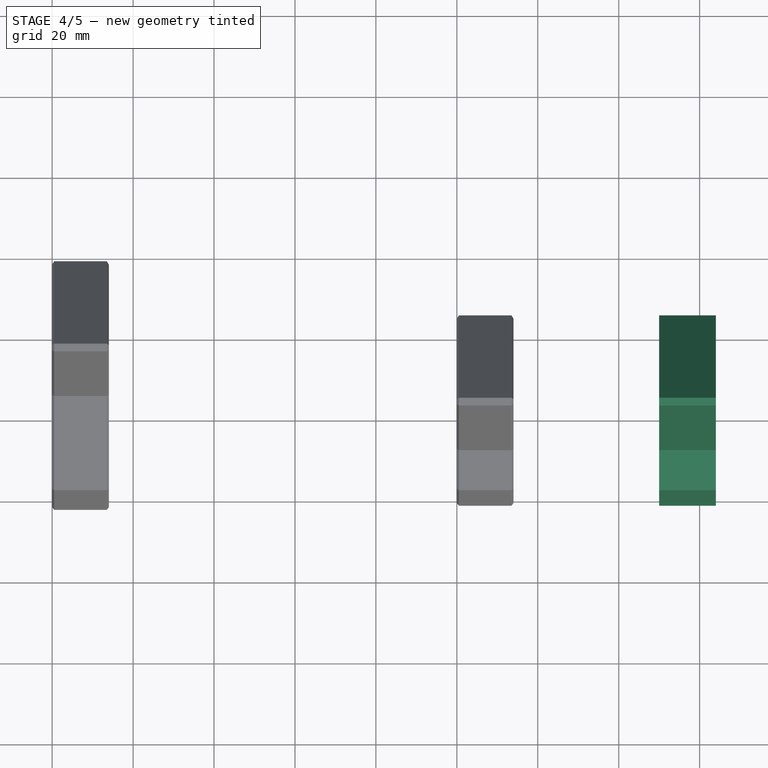
[diagram: stage 4 of 5 — top view after this stage's code; geometry added in this stage tinted green]
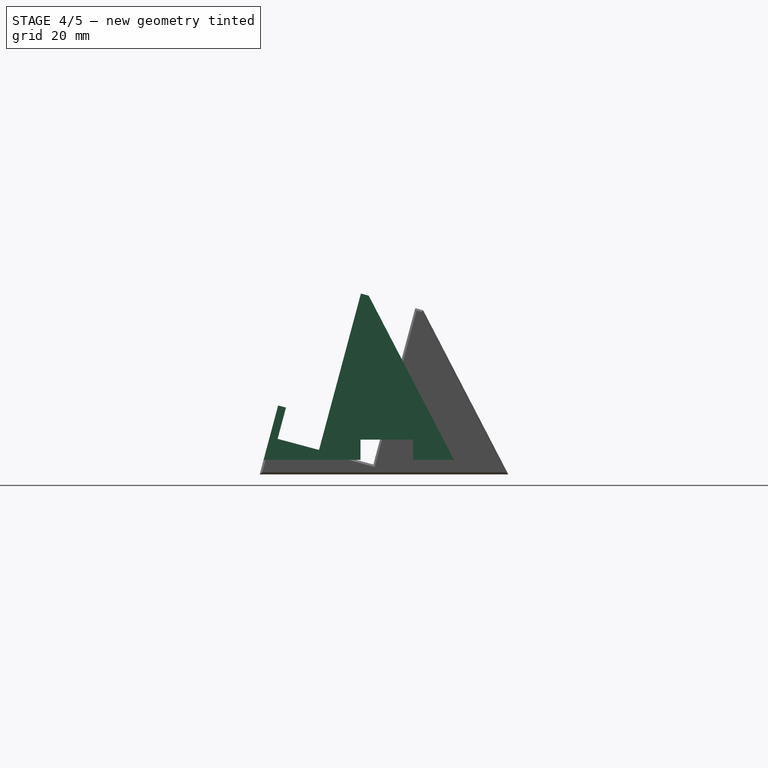
[diagram: stage 4 of 5 — right view after this stage's code; geometry added in this stage tinted green]
FEATURE [Sketcher::SketchObject] Sketch005
  ExternalGeometry = -> [Pocket001]
  FullyConstrained = true
  MapMode = 5
  Placement = pos=(100,2.5e-15,1.22124) rot=(1,0,0;3.14159rad)
  Support = -> [Pocket001]
  sketch-geometry (1):
    g0: Circle CenterX=7 CenterY=-29.4423 CenterZ=0 NormalX=0 NormalY=0 NormalZ=1 AngleXU=0 Radius=2.6
  constraints (2):
    c: Coincident(g0,g-3)
    c: Diameter(g0) = 5.2
FEATURE [PartDesign::Pocket] Pocket002
  BaseFeature = -> Pocket001
  Direction = (-1e-16,1.9e-15,1)
  Length = 5
  Length2 = 5
  Placement = pos=(100,0,0) rot=(-1,0,0;0.261799rad)
  Profile = -> Sketch005
  ReferenceAxis = -> Sketch005 [N_Axis]
  Type = 0
FEATURE [PartDesign::FeatureBase] Clone002
  BaseFeature = -> Pocket002
  Placement = pos=(150,0,0) rot=(-1,0,0;0.261799rad)
FEATURE [PartDesign::Pad] Pad003
  BaseFeature = -> Pocket002
  Direction = (-1,2e-16,-4e-16)
  Length = 2
  Length2 = 10
  Placement = pos=(100,0,0) rot=(-1,0,0;0.261799rad)
  Profile = -> Sketch003
  ReferenceAxis = -> Sketch003 [N_Axis]
  Refine = true
  Reversed = true
  Type = 0
FEATURE [Sketcher::SketchObject] Sketch006
  ExternalGeometry = -> [Clone002]
  FullyConstrained = true
  MapMode = 5
  Placement = pos=(164,-5e-16,6.1e-15) rot=(0.519988,0.677661,0.519988;1.95044rad)
  Support = -> [Clone002]
  sketch-geometry (4):
    g0: LineSegment StartX=21.9327 StartY=14.1293 StartZ=0 EndX=30.8192 EndY=16.5104 EndZ=0
    g1: LineSegment StartX=30.8192 StartY=16.5104 StartZ=0 EndX=31.7251 EndY=13.1297 EndZ=0
    g2: LineSegment StartX=31.7251 StartY=13.1297 StartZ=0 EndX=22.8385 EndY=10.7485 EndZ=0
    g3: LineSegment StartX=22.8385 StartY=10.7485 StartZ=0 EndX=21.9327 EndY=14.1293 EndZ=0
  constraints (8):
    c: Coincident(g0,g-3)
    c: Coincident(g0,g-4)
    c: Coincident(g1,g0)
    c: Coincident(g1,g-4)
    c: Coincident(g2,g1)
    c: Coincident(g2,g-3)
    c: Coincident(g3,g2)
    c: Coincident(g3,g0)
FEATURE [PartDesign::Pad] Pad004
  BaseFeature = -> Clone002
  Direction = (1,1e-16,2e-16)
  Length = 2
  Length2 = 10
  Placement = pos=(150,0,0) rot=(-1,0,0;0.261799rad)
  Profile = -> Sketch006
  ReferenceAxis = -> Sketch006 [N_Axis]
  Refine = true
  Reversed = true
  Type = 0
FEATURE [PartDesign::Chamfer] Chamfer001
  Angle = 45
  Base = -> Pad003 [Face4,Face66]
  BaseFeature = -> Pad003
  ChamferType = 0
  FlipDirection = false
  Placement = pos=(100,0,0) rot=(-1,0,0;0.261799rad)
  Size = 0.5
  Size2 = 1
  SupportTransform = false
  UseAllEdges = false
FEATURE [PartDesign::Body] Body001  label="CD Stand"
  BaseFeature = -> Body
  Group = -> [Clone,Sketch001,Pad001,Sketch002,Pad002,Chamfer002,Sketch007,Pocket003,Pocket004]
  Origin = -> Origin002
  Tip = -> Pocket004
FEATURE [Sketcher::SketchObject] Sketch008
  ExternalGeometry = -> [Chamfer001]
  FullyConstrained = true
  MapMode = 5
  Placement = pos=(100,-6.9e-15,-3.77876) rot=(1,0,0;3.14159rad)
  Support = -> [Chamfer001]
  sketch-geometry (6):
    g0: Circle CenterX=7 CenterY=-40.9904 CenterZ=0 NormalX=0 NormalY=0 NormalZ=1 AngleXU=0 Radius=3.136
    g1: Circle CenterX=7 CenterY=-40.9904 CenterZ=0 NormalX=0 NormalY=0 NormalZ=1 AngleXU=0 Radius=0.893
    g2: LineSegment StartX=7 StartY=-40.9904 StartZ=0 EndX=7 EndY=-44.1264 EndZ=0
    g3: LineSegment StartX=7 StartY=-44.1264 StartZ=0 EndX=7 EndY=-46.0385 EndZ=0
    g4: LineSegment StartX=7 StartY=-40.9904 StartZ=0 EndX=7 EndY=-37.8544 EndZ=0
    g5: LineSegment StartX=7 StartY=-37.8544 StartZ=0 EndX=7 EndY=-35.9423 EndZ=0
  constraints (16):
    c: Coincident(g1,g0)
    c: Coincident(g2,g0)
    c: PointOnObject(g2,g0)
    c: Vertical(g2)
    c: Coincident(g3,g2)
    c: Vertical(g3)
    c: Symmetric(g-4,g-4,g3)
    c: Diameter(g0) = 6.272
    c: Diameter(g1) = 1.786
    c: Coincident(g4,g0)
    c: PointOnObject(g4,g0)
    c: Vertical(g4)
    c: Coincident(g5,g4)
    c: PointOnObject(g5,g-3)
    c: Vertical(g5)
    c: Equal(g5,g3)
FEATURE [PartDesign::Pocket] Pocket005
  BaseFeature = -> Chamfer001
  Direction = (-1e-16,1.3e-15,1)
  Length = 0.5
  Length2 = 5
  Placement = pos=(100,0,0) rot=(-1,0,0;0.261799rad)
  Profile = -> Sketch008
  ReferenceAxis = -> Sketch008 [N_Axis]
  Type = 0
FEATURE [PartDesign::Pocket] Pocket006
  BaseFeature = -> Pocket005
  Direction = (-1e-16,1.2e-15,1)
  Length = 1
  Length2 = 5
  Placement = pos=(100,0,0) rot=(-1,0,0;0.261799rad)
  Profile = -> Pocket005 [Face98]
  Type = 0
FEATURE [PartDesign::Body] Body003  label="CD Kit Right"
  BaseFeature = -> Pocket002
  Group = -> [Clone002,Sketch006,Pad004,Chamfer,Sketch009,Pocket007,Pocket008,ShapeString002,Pocket009]
  Origin = -> Origin004
  Tip = -> Pocket009
FEATURE [PartDesign::Pocket] Pocket010
  BaseFeature = -> Pocket006
  Direction = (0,0,1)
  Length = 0
  Length2 = 5
  Offset = 0.5
  Placement = pos=(100,0,0) rot=(-1,0,0;0.261799rad)
  Profile = -> ShapeString001
  ReferenceAxis = -> ShapeString001 [N_Axis]
  Type = 3
  UpToFace = -> Pocket006 [Face8]
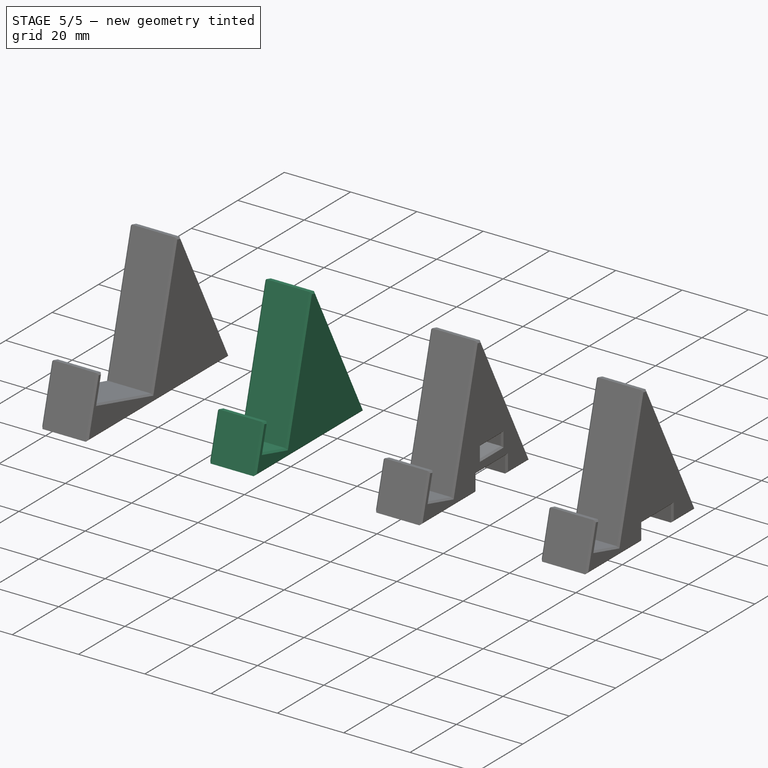
[diagram: stage 5 of 5 — iso view after this stage's code; geometry added in this stage tinted green]
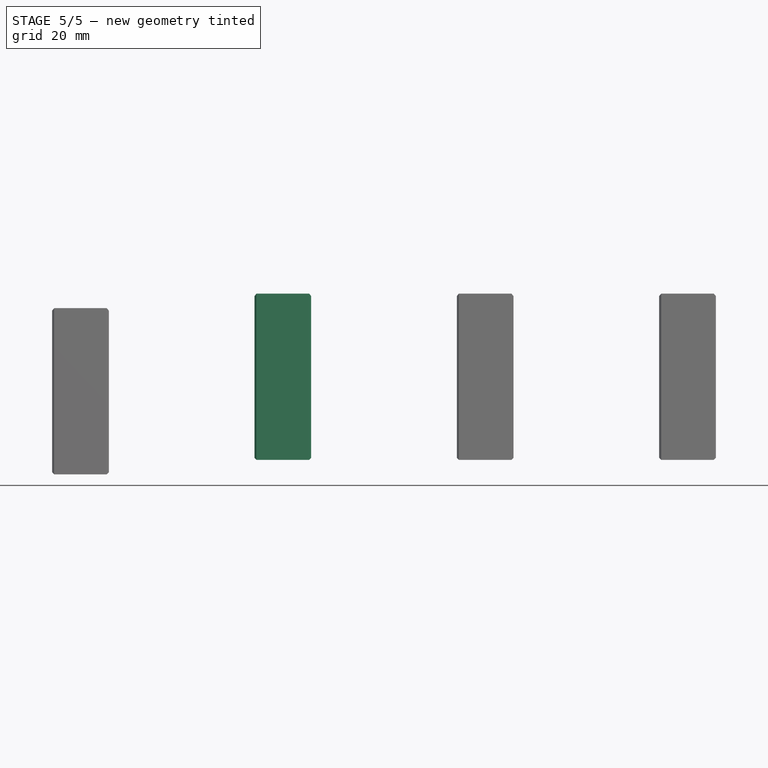
[diagram: stage 5 of 5 — front view after this stage's code; geometry added in this stage tinted green]
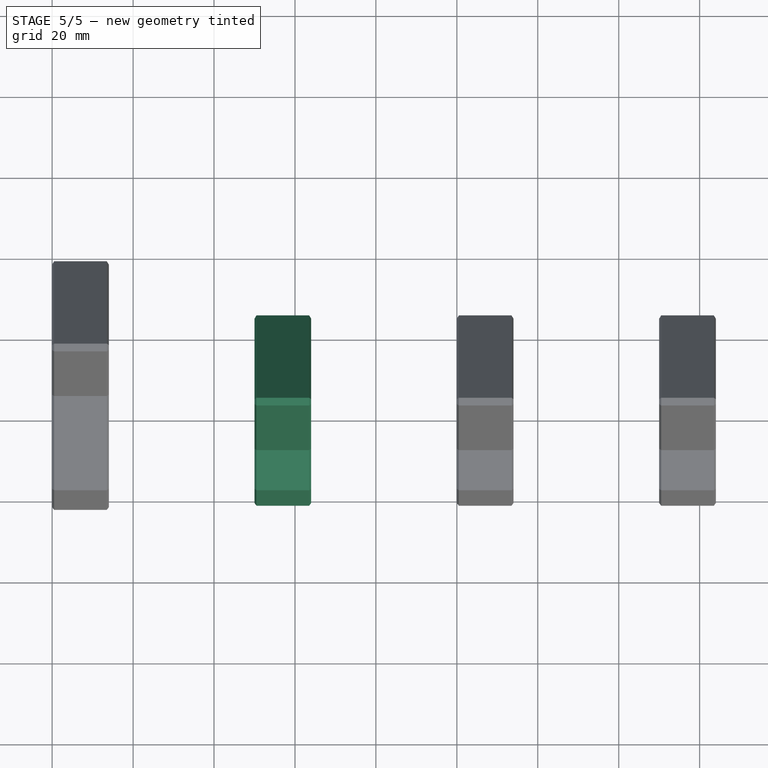
[diagram: stage 5 of 5 — top view after this stage's code; geometry added in this stage tinted green]
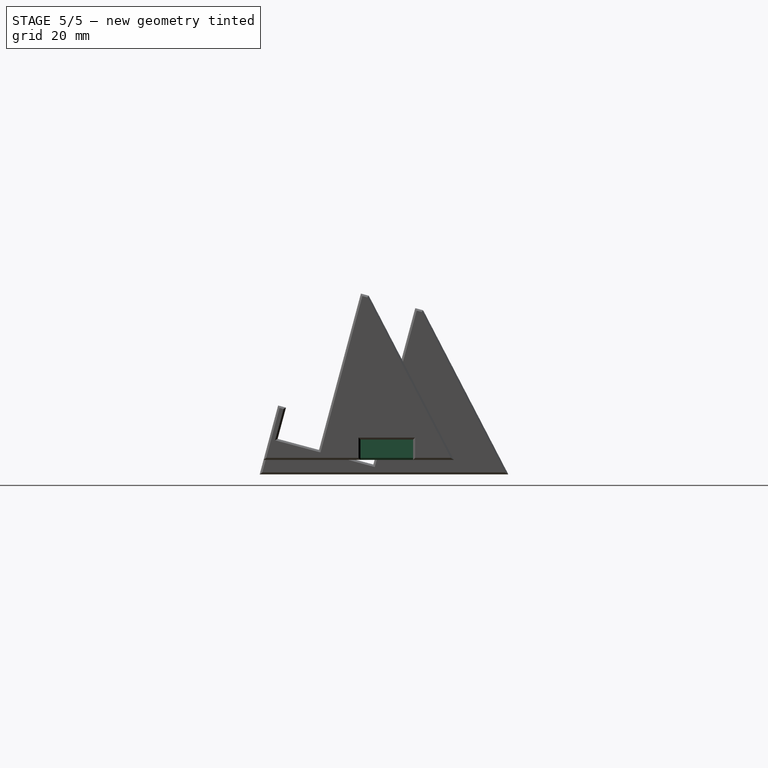
[diagram: stage 5 of 5 — right view after this stage's code; geometry added in this stage tinted green]
FEATURE [Sketcher::SketchObject] Sketch002
  ExternalGeometry = -> [Pad001]
  FullyConstrained = true
  MapMode = 5
  Placement = pos=(50,0,0) rot=(0.519988,-0.677661,-0.519988;1.95044rad)
  Support = -> [Pad001]
  sketch-geometry (8):
    g0: LineSegment StartX=-34.4015 StartY=10.4822 StartZ=0 EndX=-21.8444 EndY=7.11752 EndZ=0
    g1: LineSegment StartX=-21.8444 StartY=7.11752 StartZ=0 EndX=-23.1385 EndY=2.28789 EndZ=0
    g2: LineSegment StartX=-23.1385 StartY=2.28789 StartZ=0 EndX=-35.6956 EndY=5.65254 EndZ=0
    g3: LineSegment StartX=-35.6956 StartY=5.65254 StartZ=0 EndX=-34.4015 EndY=10.4822 EndZ=0
    g4: LineSegment StartX=-31.7251 StartY=13.1297 StartZ=0 EndX=-30.8192 EndY=16.5104 EndZ=0
    g5: LineSegment StartX=-30.8192 StartY=16.5104 StartZ=0 EndX=-21.9327 EndY=14.1293 EndZ=0
    g6: LineSegment StartX=-21.9327 StartY=14.1293 StartZ=0 EndX=-22.8385 EndY=10.7485 EndZ=0
    g7: LineSegment StartX=-22.8385 StartY=10.7485 StartZ=0 EndX=-31.7251 EndY=13.1297 EndZ=0
  constraints (16):
    c: Coincident(g0,g-6)
    c: Coincident(g0,g-5)
    c: Coincident(g1,g0)
    c: Coincident(g1,g-5)
    c: Coincident(g2,g1)
    c: Coincident(g2,g-6)
    c: Coincident(g3,g2)
    c: Coincident(g3,g0)
    c: Coincident(g4,g-4)
    c: Coincident(g4,g-3)
    c: Coincident(g5,g4)
    c: Coincident(g5,g-3)
    c: Coincident(g6,g5)
    c: Coincident(g6,g-4)
    c: Coincident(g7,g6)
    c: Coincident(g7,g4)
FEATURE [PartDesign::Pad] Pad002
  BaseFeature = -> Pad001
  Direction = (-1,2e-16,-4e-16)
  Length = 14
  Length2 = 10
  Placement = pos=(50,0,0) rot=(-1,0,0;0.261799rad)
  Profile = -> Sketch002
  ReferenceAxis = -> Sketch002 [N_Axis]
  Refine = true
  Reversed = true
  Type = 0
FEATURE [PartDesign::Chamfer] Chamfer
  Angle = 45
  Base = -> Pad004 [Face66,Face4]
  BaseFeature = -> Pad004
  ChamferType = 0
  FlipDirection = false
  Placement = pos=(150,0,0) rot=(-1,0,0;0.261799rad)
  Size = 0.5
  Size2 = 1
  SupportTransform = false
  UseAllEdges = false
FEATURE [PartDesign::Chamfer] Chamfer002
  Angle = 45
  Base = -> Pad002 [Face52,Face53]
  BaseFeature = -> Pad002
  ChamferType = 0
  FlipDirection = false
  Placement = pos=(50,0,0) rot=(-1,0,0;0.261799rad)
  Size = 0.5
  Size2 = 1
  SupportTransform = false
  UseAllEdges = false
FEATURE [Sketcher::SketchObject] Sketch007
  ExternalGeometry = -> [Chamfer002]
  FullyConstrained = true
  MapMode = 5
  Placement = pos=(50,-6.5e-15,-3.77876) rot=(1,0,0;3.14159rad)
  Support = -> [Chamfer002]
  sketch-geometry (4):
    g0: LineSegment StartX=7 StartY=-46.0385 StartZ=0 EndX=7 EndY=-44.0385 EndZ=0
    g1: LineSegment StartX=7 StartY=-44.0385 StartZ=0 EndX=7 EndY=-40.9025 EndZ=0
    g2: Circle CenterX=7 CenterY=-40.9025 CenterZ=0 NormalX=0 NormalY=0 NormalZ=1 AngleXU=0 Radius=3.136
    g3: Circle CenterX=7 CenterY=-40.9025 CenterZ=0 NormalX=0 NormalY=0 NormalZ=1 AngleXU=0 Radius=0.893
  constraints (10):
    c: Vertical(g0)
    c: Symmetric(g-3,g-3,g0)
    c: Coincident(g1,g0)
    c: Vertical(g1)
    c: Coincident(g2,g1)
    c: PointOnObject(g0,g2)
    c: Distance(g0) = 2
    c: Diameter(g2) = 6.272
    c: Coincident(g3,g2)
    c: Diameter(g3) = 1.786
FEATURE [PartDesign::Pocket] Pocket003
  BaseFeature = -> Chamfer002
  Direction = (-2e-16,1.7e-15,1)
  Length = 0.5
  Length2 = 5
  Placement = pos=(50,0,0) rot=(-1,0,0;0.261799rad)
  Profile = -> Sketch007
  ReferenceAxis = -> Sketch007 [N_Axis]
  Type = 0
FEATURE [PartDesign::Pocket] Pocket004
  BaseFeature = -> Pocket003
  Direction = (-2e-16,1.6e-15,1)
  Length = 1
  Length2 = 5
  Placement = pos=(50,0,0) rot=(-1,0,0;0.261799rad)
  Profile = -> Pocket003 [Face74]
  Type = 0
FEATURE [Sketcher::SketchObject] Sketch009
  ExternalGeometry = -> [Chamfer]
  FullyConstrained = true
  MapMode = 5
  Placement = pos=(150,-6.9e-15,-3.77876) rot=(1,0,0;3.14159rad)
  Support = -> [Chamfer]
  sketch-geometry (6):
    g0: LineSegment StartX=7 StartY=-46.0385 StartZ=0 EndX=7 EndY=-44.1264 EndZ=0
    g1: LineSegment StartX=7 StartY=-37.8544 StartZ=0 EndX=7 EndY=-35.9423 EndZ=0
    g2: LineSegment StartX=7 StartY=-37.8544 StartZ=0 EndX=7 EndY=-40.9904 EndZ=0
    g3: LineSegment StartX=7 StartY=-40.9904 StartZ=0 EndX=7 EndY=-44.1264 EndZ=0
    g4: Circle CenterX=7 CenterY=-40.9904 CenterZ=0 NormalX=0 NormalY=0 NormalZ=1 AngleXU=0 Radius=3.136
    g5: Circle CenterX=7 CenterY=-40.9904 CenterZ=0 NormalX=0 NormalY=0 NormalZ=1 AngleXU=0 Radius=0.893
  constraints (15):
    c: Vertical(g0)
    c: Symmetric(g-3,g-3,g1)
    c: Symmetric(g-4,g-4,g0)
    c: Coincident(g2,g1)
    c: Vertical(g2)
    c: Coincident(g3,g2)
    c: Coincident(g3,g0)
    c: Coincident(g4,g2)
    c: PointOnObject(g1,g4)
    c: PointOnObject(g0,g4)
    c: Equal(g1,g0)
    c: Diameter(g4) = 6.272
    c: Coincident(g5,g4)
    c: Parallel(g0,g3)
    c: Diameter(g5) = 1.786
FEATURE [PartDesign::Pocket] Pocket007
  BaseFeature = -> Chamfer
  Direction = (-1e-16,1.3e-15,1)
  Length = 0.5
  Length2 = 5
  Placement = pos=(150,0,0) rot=(-1,0,0;0.261799rad)
  Profile = -> Sketch009
  ReferenceAxis = -> Sketch009 [N_Axis]
  Type = 0
FEATURE [PartDesign::Pocket] Pocket008
  BaseFeature = -> Pocket007
  Direction = (-1e-16,1.2e-15,1)
  Length = 1
  Length2 = 5
  Placement = pos=(150,0,0) rot=(-1,0,0;0.261799rad)
  Profile = -> Pocket007 [Face98]
  Type = 0
FEATURE [Part::Part2DObjectPython] ShapeString001  # Draft 2D object (typed FeaturePython)
  FontFile = F:/16 Bit Git Repro/16 Bit Store/Font/OpenSans-Regular.ttf
  MakeFace = true
  Placement = pos=(103.72,8.79,-5.78) rot=(1,0,0;3.14159rad)
  Size = 10
  String = L
  Tracking = 0
FEATURE [Part::Part2DObjectPython] ShapeString002  # Draft 2D object (typed FeaturePython)
  FontFile = F:/16 Bit Git Repro/16 Bit Store/Font/OpenSans-Regular.ttf
  MakeFace = true
  Placement = pos=(153.45,8.79,-5.78) rot=(1,0,0;3.14159rad)
  Size = 10
  String = R
  Tracking = 0
FEATURE [PartDesign::Pocket] Pocket009
  BaseFeature = -> Pocket008
  Direction = (0,0,1)
  Length = 0
  Length2 = 5
  Offset = 0.5
  Placement = pos=(150,0,0) rot=(-1,0,0;0.261799rad)
  Profile = -> ShapeString002
  ReferenceAxis = -> ShapeString002 [N_Axis]
  Type = 3
  UpToFace = -> Pocket008 [Face8]
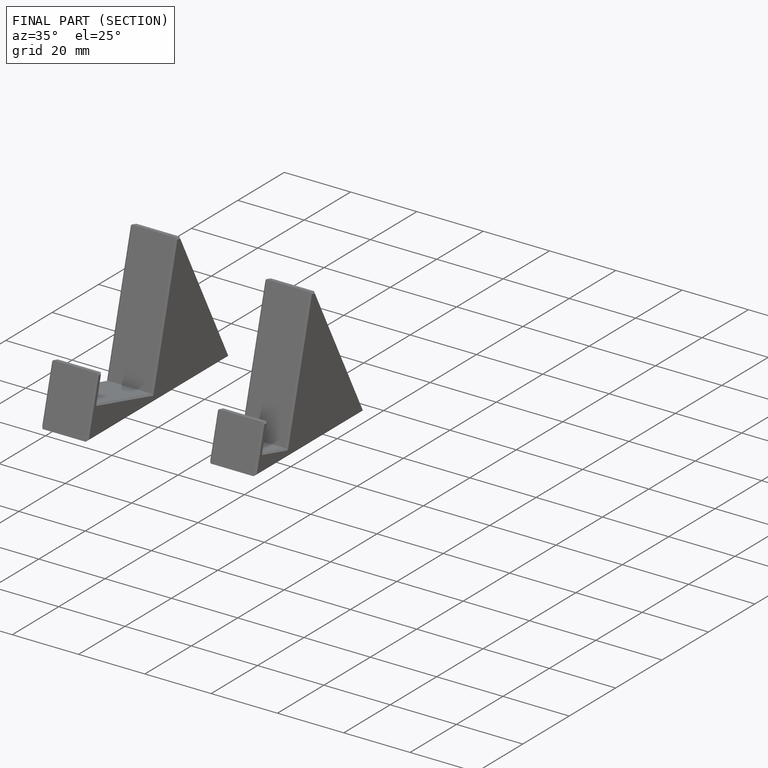
[diagram: finished part — half-section view (interior)]
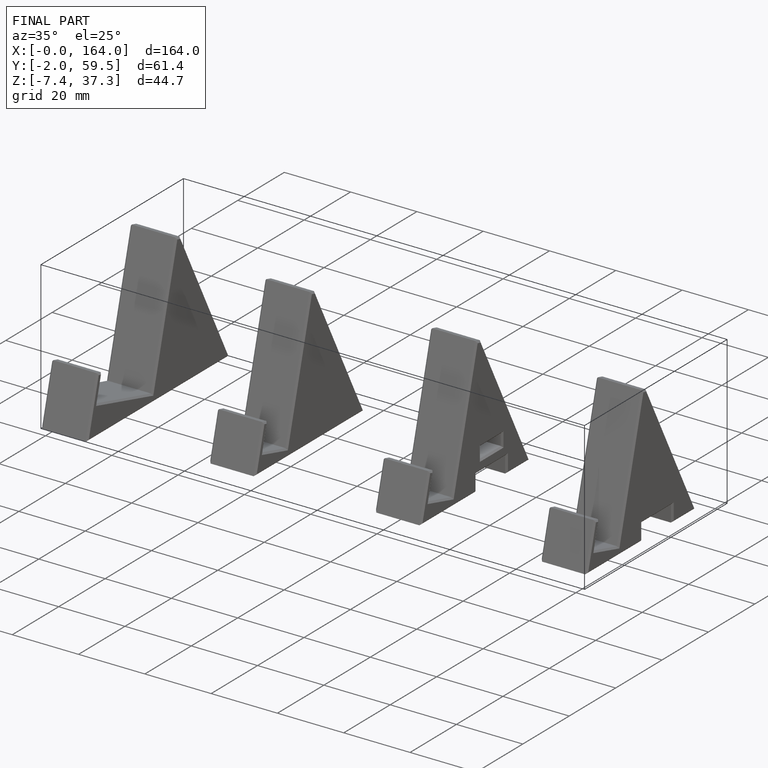
[diagram: finished part — iso view with bounding-box wireframe]
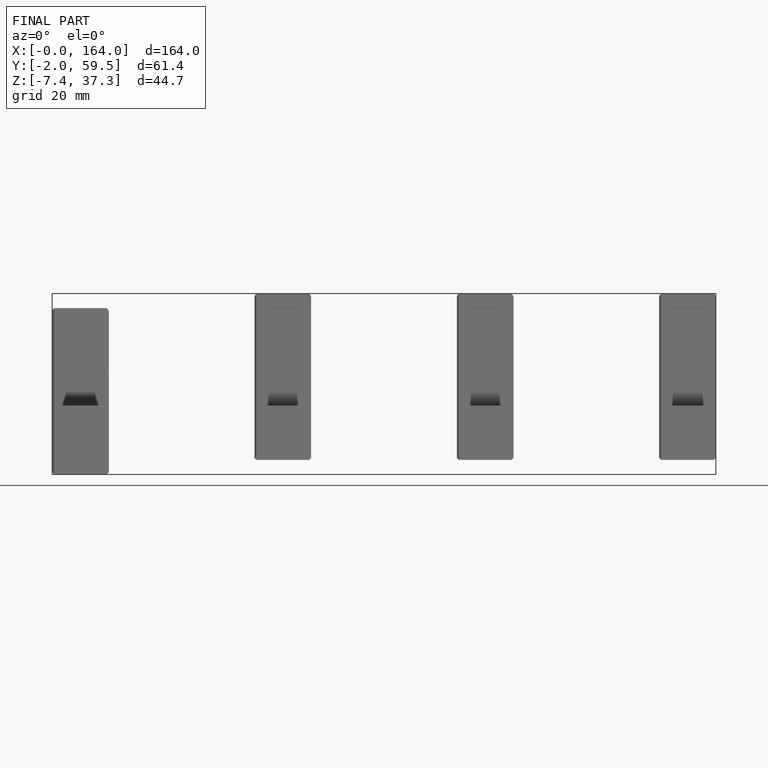
[diagram: finished part — front view with bounding-box wireframe]
